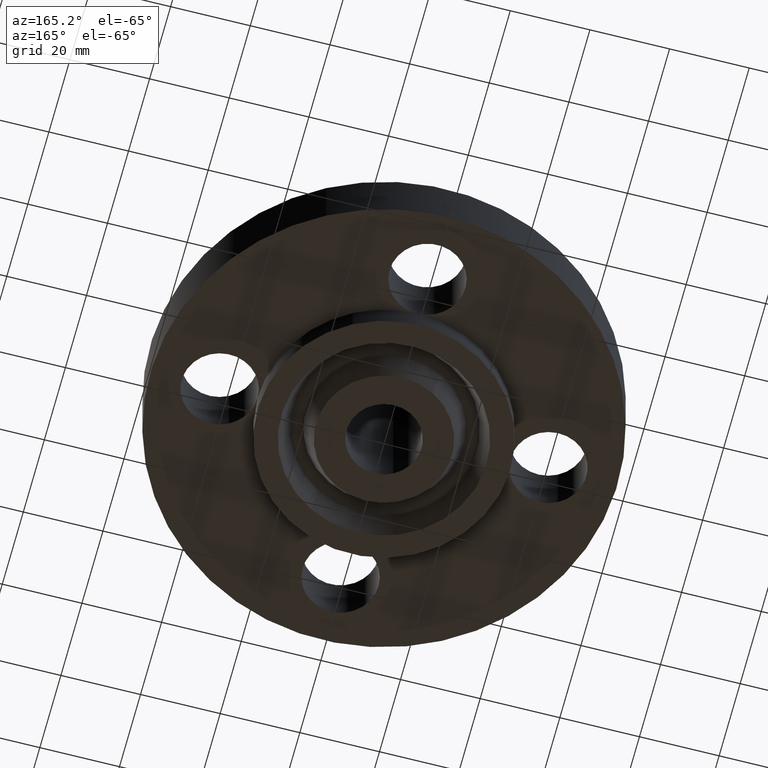
[diagram: clean part render]
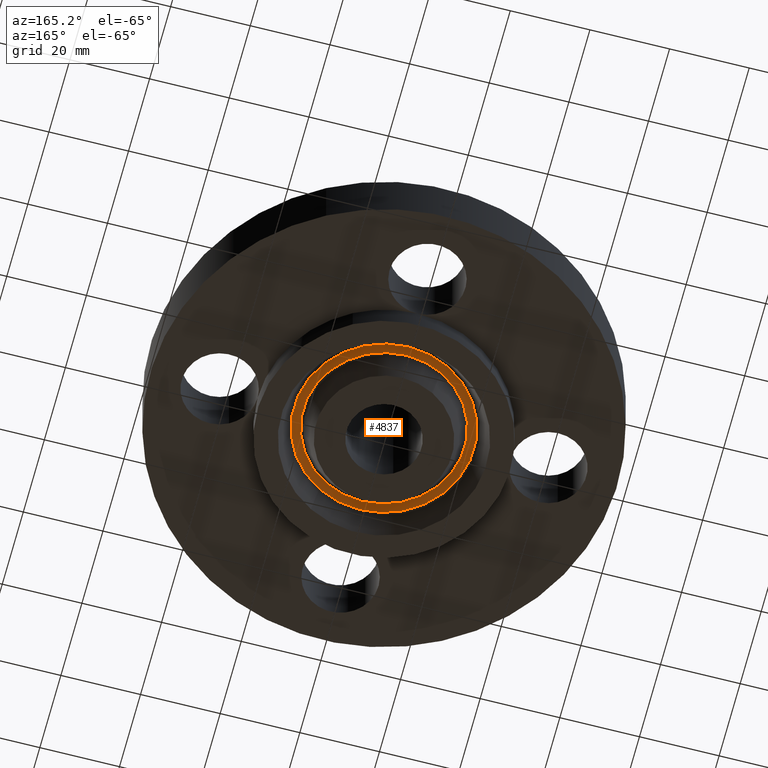
[diagram: same view with one face highlighted and labeled with its STEP entity id]
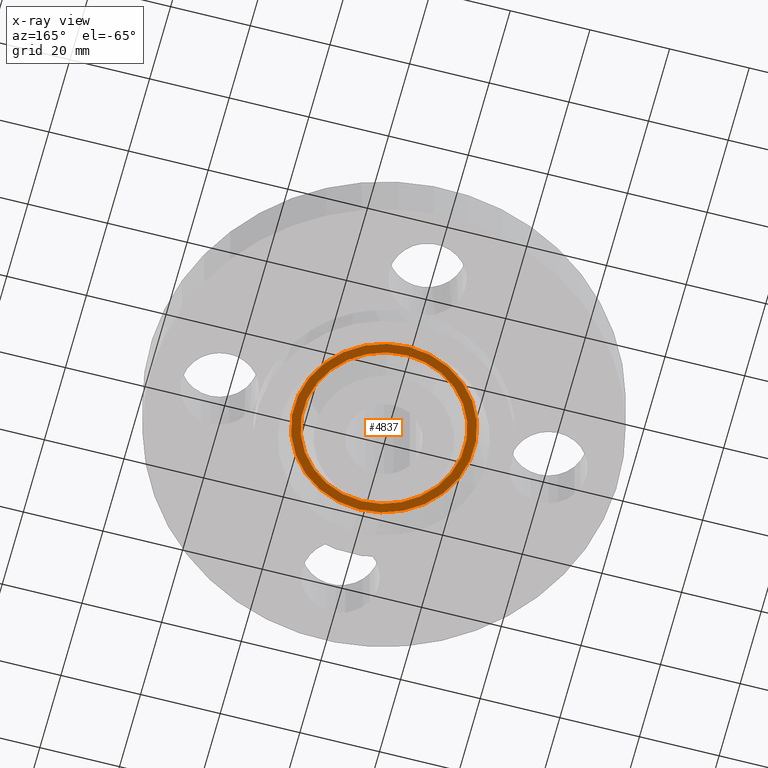
[diagram: x-ray of the same camera — body ghosted, the highlighted face saturated]
A machine part, auxiliary view. The second image highlights one B-rep face of the part: STEP entity #4837.
The next image is the same camera in x-ray: the body ghosted, the highlighted face saturated — about 0% of this face is hidden behind the body in this view.
In plain terms, the highlighted planar face has unit normal (0, 0, -1).
Its self-contained STEP definition (entity closure, byte-faithful):
#135=AXIS2_PLACEMENT_3D('Plane Axis2P3D',#132,#133,#134) ;
#1797=AXIS2_PLACEMENT_3D('Circle Axis2P3D',#1795,#1796,$) ;
#1828=AXIS2_PLACEMENT_3D('Circle Axis2P3D',#1826,#1827,$) ;
#4821=AXIS2_PLACEMENT_3D('Circle Axis2P3D',#4819,#4820,$) ;
#4830=AXIS2_PLACEMENT_3D('Circle Axis2P3D',#4828,#4829,$) ;
#132=CARTESIAN_POINT('Axis2P3D Location',(0.,1.25000000001,0.)) ;
#1792=CARTESIAN_POINT('Vertex',(-0.426383260286,0.780489322696,0.)) ;
#1795=CARTESIAN_POINT('Axis2P3D Location',(0.,0.,0.)) ;
#1799=CARTESIAN_POINT('Vertex',(0.426383260286,-0.780489322696,0.)) ;
#1826=CARTESIAN_POINT('Axis2P3D Location',(0.,0.,0.)) ;
#4819=CARTESIAN_POINT('Axis2P3D Location',(4.36653687836E-011,-2.81153927786E-012,0.)) ;
#4823=CARTESIAN_POINT('Vertex',(0.382887048896,-0.700870041806,0.)) ;
#4825=CARTESIAN_POINT('Vertex',(-0.382887048896,0.700870041753,0.)) ;
#4828=CARTESIAN_POINT('Axis2P3D Location',(-1.28117988659E-011,-3.36654588721E-011,0.)) ;
#133=DIRECTION('Axis2P3D Direction',(0.,0.,-0.0393700787402)) ;
#134=DIRECTION('Axis2P3D XDirection',(0.0393700787402,0.,0.)) ;
#1796=DIRECTION('Axis2P3D Direction',(0.,0.,0.0393700787402)) ;
#1827=DIRECTION('Axis2P3D Direction',(0.,0.,0.0393700787402)) ;
#4820=DIRECTION('Axis2P3D Direction',(0.,0.,-0.0393700787402)) ;
#4829=DIRECTION('Axis2P3D Direction',(0.,0.,-0.0393700787402)) ;
#4816=ORIENTED_EDGE('',*,*,#1801,.F.) ;
#4817=ORIENTED_EDGE('',*,*,#1830,.F.) ;
#4834=ORIENTED_EDGE('',*,*,#4827,.T.) ;
#4835=ORIENTED_EDGE('',*,*,#4832,.T.) ;
#4836=FACE_BOUND('',#4833,.T.) ;
#4837=ADVANCED_FACE('PartBody',(#4818,#4836),#136,.T.) ;
#1798=CIRCLE('generated circle',#1797,0.889362843554) ;
#1829=CIRCLE('generated circle',#1828,0.889362843554) ;
#4822=CIRCLE('generated circle',#4821,0.798637156459) ;
#4831=CIRCLE('generated circle',#4830,0.798637156459) ;
#1801=EDGE_CURVE('',#1793,#1800,#1798,.T.) ;
#1830=EDGE_CURVE('',#1800,#1793,#1829,.T.) ;
#4827=EDGE_CURVE('',#4824,#4826,#4822,.F.) ;
#4832=EDGE_CURVE('',#4826,#4824,#4831,.F.) ;
#4815=EDGE_LOOP('',(#4816,#4817)) ;
#4833=EDGE_LOOP('',(#4834,#4835)) ;
#4818=FACE_OUTER_BOUND('',#4815,.T.) ;
#136=PLANE('',#135) ;
#1793=VERTEX_POINT('',#1792) ;
#1800=VERTEX_POINT('',#1799) ;
#4824=VERTEX_POINT('',#4823) ;
#4826=VERTEX_POINT('',#4825) ;